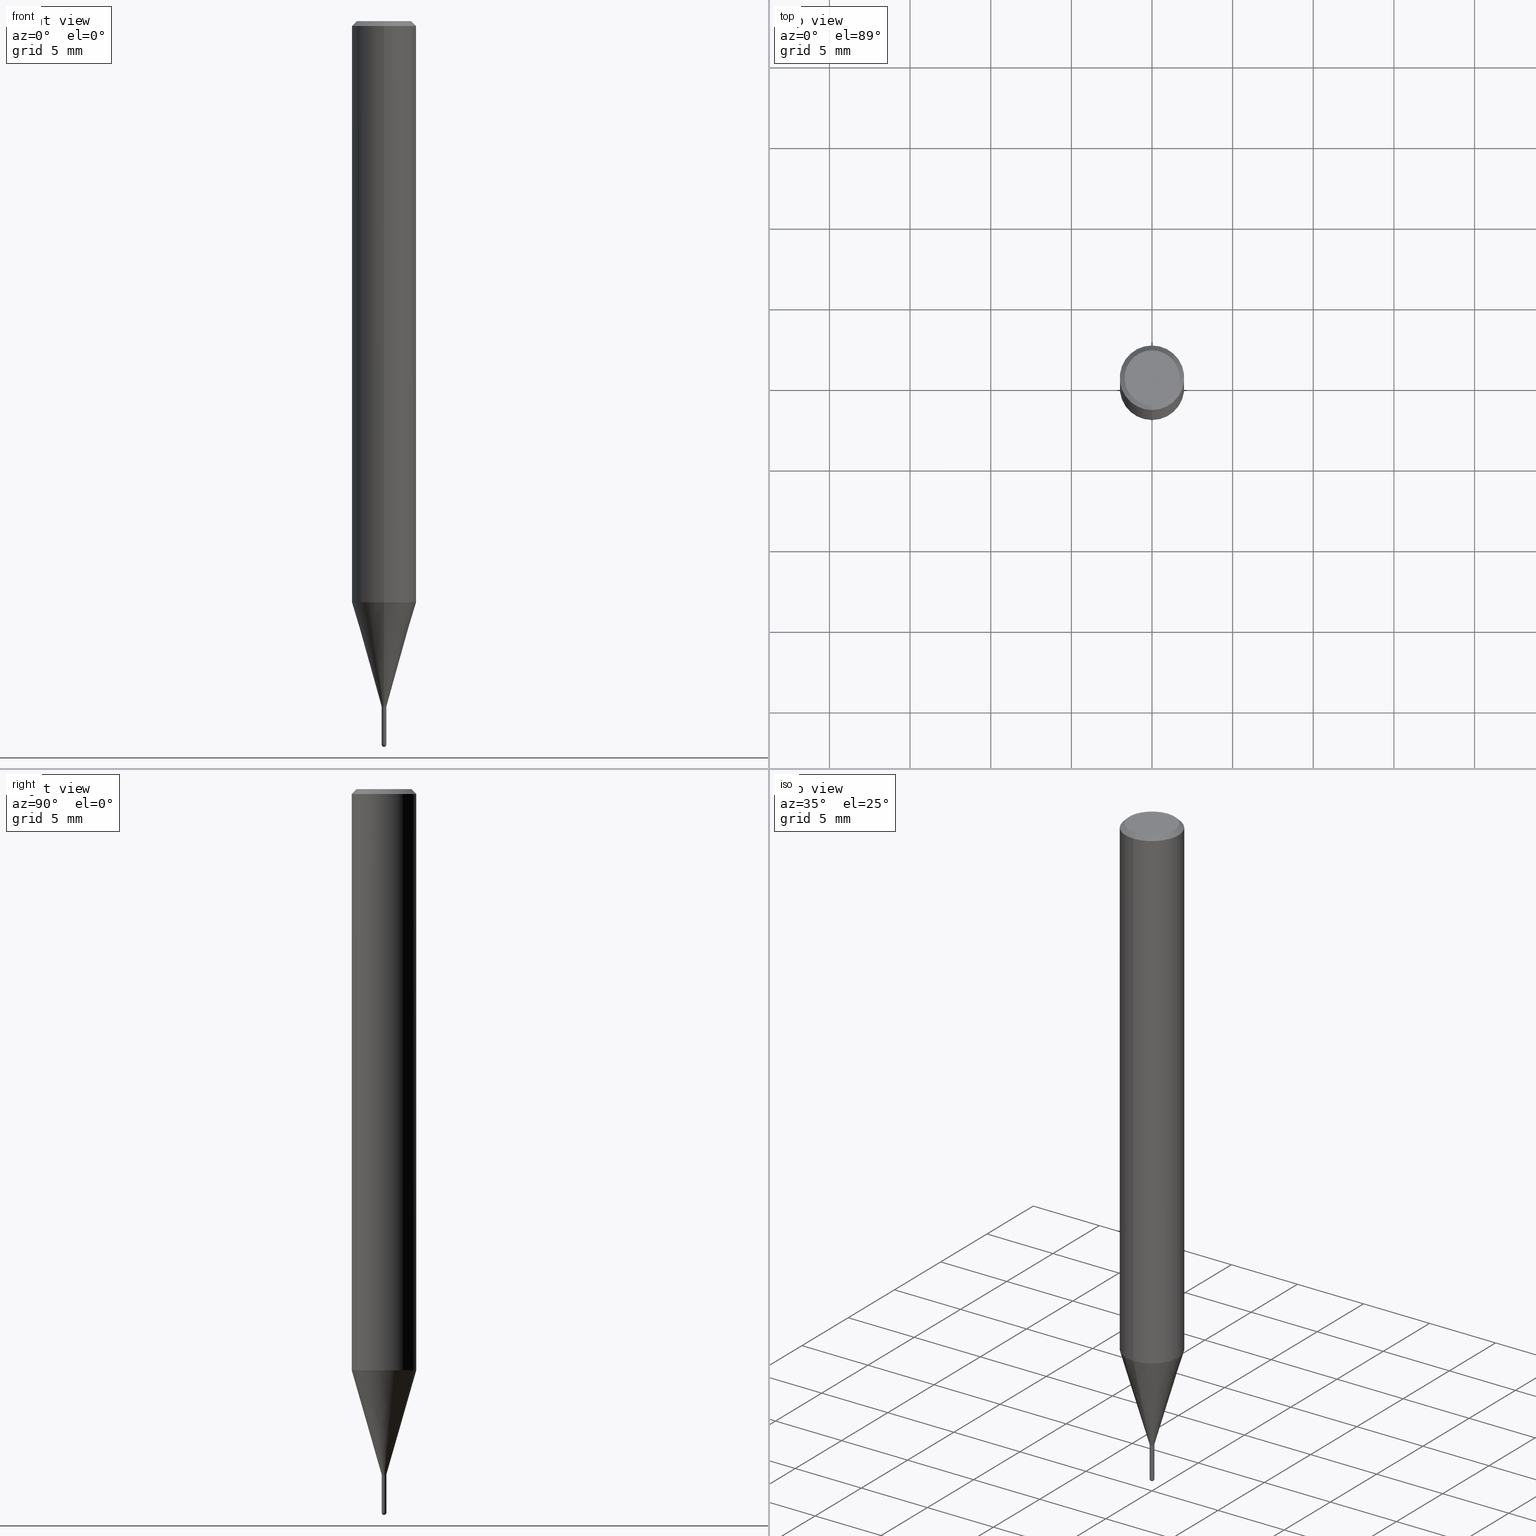
[diagram: canonical four-view strip — front | top / right | iso, engineering-drawing reading convention]
A machine part, canonical four-view strip (front | top / right | iso — engineering-drawing reading convention). The complete STEP part file that produces these views, byte-faithful:
ISO-10303-21;
HEADER;
FILE_DESCRIPTION(('no description'),'unknown implementation level');
FILE_NAME('HSLB2003-025-Huellk.stp','  ',('CIMSOURCE GmbH'),('CADClick - KiM GmbH - www.kimweb.de'),'unknown preprocess','ACIS','unknown authorization');
FILE_SCHEMA(('automotive_design'));
ENDSEC;
DATA;
#1=MECHANICAL_DESIGN_GEOMETRIC_PRESENTATION_REPRESENTATION(' ',(#14,#15,#16,#17,#18,#19,#20,#21,#22,#23,#24,#25,#26,#27,#28,#29,#30,#31,#32,#33,#34,#35,#36,#37,#38,#39,#40,#41,#42,#43,#44,#45,#46,#47,#48,#49,#50,#51,#52,#53,#54,#55,#56,#57,#58,#59,#60,#61,#62,#63,#64,#65,#66,#67,#68,#69,#70,#71,#72,#73,#74),#10);
#2=PRODUCT_DEFINITION_CONTEXT('',#75,'design');
#3=APPLICATION_PROTOCOL_DEFINITION('INTERNATIONAL STANDARD','automotive_design',1994,#75);
#4=PRODUCT_CATEGORY_RELATIONSHIP('NONE','NONE',#76,#77);
#5=SHAPE_DEFINITION_REPRESENTATION(#78,#79);
#6=PRODUCT_DEFINITION_CONTEXT('',#80,'design');
#7=APPLICATION_PROTOCOL_DEFINITION('INTERNATIONAL STANDARD','automotive_design',1994,#80);
#8=PRODUCT_CATEGORY_RELATIONSHIP('NONE','NONE',#81,#82);
#9=SHAPE_DEFINITION_REPRESENTATION(#83,#84);
#10= (GEOMETRIC_REPRESENTATION_CONTEXT(3)GLOBAL_UNCERTAINTY_ASSIGNED_CONTEXT((#87))GLOBAL_UNIT_ASSIGNED_CONTEXT((#89,#90,#91))REPRESENTATION_CONTEXT('NONE','WORKSPACE'));
#14=STYLED_ITEM('',(#93),#94);
#15=STYLED_ITEM('',(#95),#96);
#16=STYLED_ITEM('',(#97),#98);
#17=STYLED_ITEM('',(#99),#100);
#18=STYLED_ITEM('',(#101),#102);
#19=STYLED_ITEM('',(#103),#104);
#20=STYLED_ITEM('',(#105),#106);
#21=STYLED_ITEM('',(#107),#108);
#22=STYLED_ITEM('',(#109),#110);
#23=STYLED_ITEM('',(#111),#112);
#24=STYLED_ITEM('',(#113),#114);
#25=STYLED_ITEM('',(#115),#116);
#26=STYLED_ITEM('',(#117),#118);
#27=STYLED_ITEM('',(#119),#120);
#28=STYLED_ITEM('',(#121),#122);
#29=STYLED_ITEM('',(#123),#124);
#30=STYLED_ITEM('',(#125),#126);
#31=STYLED_ITEM('',(#127),#128);
#32=STYLED_ITEM('',(#129),#130);
#33=STYLED_ITEM('',(#131),#132);
#34=STYLED_ITEM('',(#133),#134);
#35=STYLED_ITEM('',(#135),#136);
#36=STYLED_ITEM('',(#137),#138);
#37=STYLED_ITEM('',(#139),#140);
#38=STYLED_ITEM('',(#141),#142);
#39=STYLED_ITEM('',(#143),#144);
#40=STYLED_ITEM('',(#145),#146);
#41=STYLED_ITEM('',(#147),#148);
#42=STYLED_ITEM('',(#149),#150);
#43=STYLED_ITEM('',(#151),#152);
#44=STYLED_ITEM('',(#153),#154);
#45=STYLED_ITEM('',(#155),#156);
#46=STYLED_ITEM('',(#157),#158);
#47=STYLED_ITEM('',(#159),#160);
#48=STYLED_ITEM('',(#161),#162);
#49=STYLED_ITEM('',(#163),#164);
#50=STYLED_ITEM('',(#165),#166);
#51=STYLED_ITEM('',(#167),#168);
#52=STYLED_ITEM('',(#169),#170);
#53=STYLED_ITEM('',(#171),#172);
#54=STYLED_ITEM('',(#173),#174);
#55=STYLED_ITEM('',(#175),#176);
#56=STYLED_ITEM('',(#177),#178);
#57=STYLED_ITEM('',(#179),#180);
#58=STYLED_ITEM('',(#181),#182);
#59=STYLED_ITEM('',(#183),#184);
#60=STYLED_ITEM('',(#185),#186);
#61=STYLED_ITEM('',(#187),#188);
#62=STYLED_ITEM('',(#189),#190);
#63=STYLED_ITEM('',(#191),#192);
#64=STYLED_ITEM('',(#193),#194);
#65=STYLED_ITEM('',(#195),#196);
#66=STYLED_ITEM('',(#197),#198);
#67=STYLED_ITEM('',(#199),#200);
#68=STYLED_ITEM('',(#201),#202);
#69=STYLED_ITEM('',(#203),#204);
#70=STYLED_ITEM('',(#205),#206);
#71=STYLED_ITEM('',(#207),#208);
#72=STYLED_ITEM('',(#209),#210);
#73=STYLED_ITEM('',(#211),#212);
#74=STYLED_ITEM('',(#213),#214);
#75=APPLICATION_CONTEXT(' ');
#76=PRODUCT_CATEGORY('part','NONE');
#77=PRODUCT_RELATED_PRODUCT_CATEGORY('detail',' ',(#215));
#78=PRODUCT_DEFINITION_SHAPE('NONE','NONE',#216);
#79=ADVANCED_BREP_SHAPE_REPRESENTATION('1',(#198,#217),#10);
#80=APPLICATION_CONTEXT(' ');
#81=PRODUCT_CATEGORY('part','NONE');
#82=PRODUCT_RELATED_PRODUCT_CATEGORY('detail',' ',(#218));
#83=PRODUCT_DEFINITION_SHAPE('NONE','NONE',#219);
#84=ADVANCED_BREP_SHAPE_REPRESENTATION('2',(#164,#220),#10);
#87=UNCERTAINTY_MEASURE_WITH_UNIT(LENGTH_MEASURE(1.0E-006),#89,'','');
#89= (CONVERSION_BASED_UNIT('MILLIMETRE',#223)LENGTH_UNIT()NAMED_UNIT(#226));
#90= (NAMED_UNIT(#228)PLANE_ANGLE_UNIT()SI_UNIT($,.RADIAN.));
#91= (NAMED_UNIT(#228)SOLID_ANGLE_UNIT()SI_UNIT($,.STERADIAN.));
#93=PRESENTATION_STYLE_ASSIGNMENT((#234));
#94=EDGE_CURVE('',#128,#178,#235,.T.);
#95=PRESENTATION_STYLE_ASSIGNMENT((#236));
#96=EDGE_CURVE('',#202,#214,#237,.T.);
#97=PRESENTATION_STYLE_ASSIGNMENT((#238));
#98=EDGE_CURVE('',#130,#176,#239,.T.);
#99=PRESENTATION_STYLE_ASSIGNMENT((#240));
#100=EDGE_CURVE('',#128,#112,#241,.T.);
#101=PRESENTATION_STYLE_ASSIGNMENT((#242));
#102=EDGE_CURVE('',#154,#136,#243,.T.);
#103=PRESENTATION_STYLE_ASSIGNMENT((#244));
#104=VERTEX_POINT('',#245);
#105=PRESENTATION_STYLE_ASSIGNMENT((#246));
#106=VERTEX_POINT('',#247);
#107=PRESENTATION_STYLE_ASSIGNMENT((#248));
#108=EDGE_CURVE('',#106,#142,#249,.T.);
#109=PRESENTATION_STYLE_ASSIGNMENT((#250));
#110=ADVANCED_FACE('',(#251),#252,.T.);
#111=PRESENTATION_STYLE_ASSIGNMENT((#253));
#112=VERTEX_POINT('',#254);
#113=PRESENTATION_STYLE_ASSIGNMENT((#255));
#114=EDGE_CURVE('',#158,#130,#256,.T.);
#115=PRESENTATION_STYLE_ASSIGNMENT((#257));
#116=ADVANCED_FACE('',(#258),#259,.T.);
#117=PRESENTATION_STYLE_ASSIGNMENT((#260));
#118=EDGE_CURVE('',#104,#158,#261,.T.);
#119=PRESENTATION_STYLE_ASSIGNMENT((#262));
#120=EDGE_CURVE('',#112,#192,#263,.T.);
#121=PRESENTATION_STYLE_ASSIGNMENT((#264));
#122=ADVANCED_FACE('',(#265),#266,.T.);
#123=PRESENTATION_STYLE_ASSIGNMENT((#267));
#124=ADVANCED_FACE('',(#268),#269,.T.);
#125=PRESENTATION_STYLE_ASSIGNMENT((#270));
#126=EDGE_CURVE('',#192,#188,#271,.T.);
#127=PRESENTATION_STYLE_ASSIGNMENT((#272));
#128=VERTEX_POINT('',#273);
#129=PRESENTATION_STYLE_ASSIGNMENT((#274));
#130=VERTEX_POINT('',#275);
#131=PRESENTATION_STYLE_ASSIGNMENT((#276));
#132=ADVANCED_FACE('',(#277),#278,.T.);
#133=PRESENTATION_STYLE_ASSIGNMENT((#279));
#134=ADVANCED_FACE('',(#280),#281,.T.);
#135=PRESENTATION_STYLE_ASSIGNMENT((#282));
#136=VERTEX_POINT('',#283);
#137=PRESENTATION_STYLE_ASSIGNMENT((#284));
#138=ADVANCED_FACE('',(#285),#286,.T.);
#139=PRESENTATION_STYLE_ASSIGNMENT((#287));
#140=EDGE_CURVE('',#104,#136,#288,.T.);
#141=PRESENTATION_STYLE_ASSIGNMENT((#289));
#142=VERTEX_POINT('',#290);
#143=PRESENTATION_STYLE_ASSIGNMENT((#291));
#144=EDGE_CURVE('',#142,#106,#292,.T.);
#145=PRESENTATION_STYLE_ASSIGNMENT((#293));
#146=EDGE_CURVE('',#112,#128,#294,.T.);
#147=PRESENTATION_STYLE_ASSIGNMENT((#295));
#148=ADVANCED_FACE('',(#296),#297,.T.);
#149=PRESENTATION_STYLE_ASSIGNMENT((#298));
#150=EDGE_CURVE('',#212,#112,#299,.T.);
#151=PRESENTATION_STYLE_ASSIGNMENT((#300));
#152=EDGE_CURVE('',#158,#154,#301,.T.);
#153=PRESENTATION_STYLE_ASSIGNMENT((#302));
#154=VERTEX_POINT('',#303);
#155=PRESENTATION_STYLE_ASSIGNMENT((#304));
#156=EDGE_CURVE('',#188,#192,#305,.T.);
#157=PRESENTATION_STYLE_ASSIGNMENT((#306));
#158=VERTEX_POINT('',#307);
#159=PRESENTATION_STYLE_ASSIGNMENT((#308));
#160=EDGE_CURVE('',#142,#202,#309,.T.);
#161=PRESENTATION_STYLE_ASSIGNMENT((#310));
#162=EDGE_CURVE('',#136,#104,#311,.T.);
#163=PRESENTATION_STYLE_ASSIGNMENT((#312));
#164=MANIFOLD_SOLID_BREP('2',#313);
#165=PRESENTATION_STYLE_ASSIGNMENT((#314));
#166=ADVANCED_FACE('',(#315),#316,.T.);
#167=PRESENTATION_STYLE_ASSIGNMENT((#317));
#168=ADVANCED_FACE('',(#318),#319,.T.);
#169=PRESENTATION_STYLE_ASSIGNMENT((#320));
#170=EDGE_CURVE('',#214,#106,#321,.T.);
#171=PRESENTATION_STYLE_ASSIGNMENT((#322));
#172=EDGE_CURVE('',#178,#212,#323,.T.);
#173=PRESENTATION_STYLE_ASSIGNMENT((#324));
#174=EDGE_CURVE('',#154,#158,#325,.T.);
#175=PRESENTATION_STYLE_ASSIGNMENT((#326));
#176=VERTEX_POINT('',#327);
#177=PRESENTATION_STYLE_ASSIGNMENT((#328));
#178=VERTEX_POINT('',#329);
#179=PRESENTATION_STYLE_ASSIGNMENT((#330));
#180=EDGE_CURVE('',#214,#202,#331,.T.);
#181=PRESENTATION_STYLE_ASSIGNMENT((#332));
#182=ADVANCED_FACE('',(#333,#334),#335,.T.);
#183=PRESENTATION_STYLE_ASSIGNMENT((#336));
#184=ADVANCED_FACE('',(#337),#338,.T.);
#185=PRESENTATION_STYLE_ASSIGNMENT((#339));
#186=EDGE_CURVE('',#176,#130,#340,.T.);
#187=PRESENTATION_STYLE_ASSIGNMENT((#341));
#188=VERTEX_POINT('',#342);
#189=PRESENTATION_STYLE_ASSIGNMENT((#343));
#190=ADVANCED_FACE('',(#344),#345,.T.);
#191=PRESENTATION_STYLE_ASSIGNMENT((#346));
#192=VERTEX_POINT('',#347);
#193=PRESENTATION_STYLE_ASSIGNMENT((#348));
#194=EDGE_CURVE('',#176,#154,#349,.T.);
#195=PRESENTATION_STYLE_ASSIGNMENT((#350));
#196=EDGE_CURVE('',#212,#178,#351,.T.);
#197=PRESENTATION_STYLE_ASSIGNMENT((#352));
#198=MANIFOLD_SOLID_BREP('1',#353);
#199=PRESENTATION_STYLE_ASSIGNMENT((#354));
#200=ADVANCED_FACE('',(#355),#356,.T.);
#201=PRESENTATION_STYLE_ASSIGNMENT((#357));
#202=VERTEX_POINT('',#358);
#203=PRESENTATION_STYLE_ASSIGNMENT((#359));
#204=EDGE_CURVE('',#214,#202,#360,.T.);
#205=PRESENTATION_STYLE_ASSIGNMENT((#361));
#206=ADVANCED_FACE('',(#362),#363,.T.);
#207=PRESENTATION_STYLE_ASSIGNMENT((#364));
#208=ADVANCED_FACE('',(#365),#366,.T.);
#209=PRESENTATION_STYLE_ASSIGNMENT((#367));
#210=EDGE_CURVE('',#188,#128,#368,.T.);
#211=PRESENTATION_STYLE_ASSIGNMENT((#369));
#212=VERTEX_POINT('',#370);
#213=PRESENTATION_STYLE_ASSIGNMENT((#371));
#214=VERTEX_POINT('',#372);
#215=PRODUCT('1','1','PART-1-DESC',(#373));
#216=PRODUCT_DEFINITION('NONE','NONE',#374,#2);
#217=AXIS2_PLACEMENT_3D('',#375,#376,#377);
#218=PRODUCT('2','2','PART-2-DESC',(#378));
#219=PRODUCT_DEFINITION('NONE','NONE',#379,#6);
#220=AXIS2_PLACEMENT_3D('',#380,#381,#382);
#223=LENGTH_MEASURE_WITH_UNIT(LENGTH_MEASURE(1.0),#383);
#226=DIMENSIONAL_EXPONENTS(1.0,0.0,0.0,0.0,0.0,0.0,0.0);
#228=DIMENSIONAL_EXPONENTS(0.0,0.0,0.0,0.0,0.0,0.0,0.0);
#234=CURVE_STYLE('',#384,POSITIVE_LENGTH_MEASURE(1.0E-006),#385);
#235=LINE('',#386,#387);
#236=CURVE_STYLE('',#388,POSITIVE_LENGTH_MEASURE(1.0E-006),#389);
#237=CIRCLE('',#390,0.15);
#238=CURVE_STYLE('',#391,POSITIVE_LENGTH_MEASURE(1.0E-006),#392);
#239=CIRCLE('',#393,0.14495);
#240=CURVE_STYLE('',#394,POSITIVE_LENGTH_MEASURE(1.0E-006),#395);
#241=CIRCLE('',#396,2.0);
#242=CURVE_STYLE('',#397,POSITIVE_LENGTH_MEASURE(1.0E-006),#398);
#243=LINE('',#399,#400);
#244=POINT_STYLE(' ',#401,POSITIVE_LENGTH_MEASURE(1.0E-006),#402);
#245=CARTESIAN_POINT('',(0.0,1.99995,-36.031));
#246=POINT_STYLE(' ',#403,POSITIVE_LENGTH_MEASURE(1.0E-006),#404);
#247=CARTESIAN_POINT('',(1.83568492437974E-017,-0.1499,-44.76));
#248=CURVE_STYLE('',#405,POSITIVE_LENGTH_MEASURE(1.0E-006),#406);
#249=CIRCLE('',#407,0.1499);
#250=SURFACE_STYLE_USAGE(.BOTH.,#408);
#251=FACE_OUTER_BOUND('',#409,.T.);
#252=CONICAL_SURFACE('',#410,1.85,0.785398163397453);
#253=POINT_STYLE(' ',#411,POSITIVE_LENGTH_MEASURE(1.0E-006),#412);
#254=CARTESIAN_POINT('',(2.44921270764475E-016,-2.0,-0.299999999999997));
#255=CURVE_STYLE('',#413,POSITIVE_LENGTH_MEASURE(1.0E-006),#414);
#256=LINE('',#415,#416);
#257=SURFACE_STYLE_USAGE(.BOTH.,#417);
#258=FACE_OUTER_BOUND('',#418,.T.);
#259=PLANE('',#419);
#260=CURVE_STYLE('',#420,POSITIVE_LENGTH_MEASURE(1.0E-006),#421);
#261=LINE('',#422,#423);
#262=CURVE_STYLE('',#424,POSITIVE_LENGTH_MEASURE(1.0E-006),#425);
#263=LINE('',#426,#427);
#264=SURFACE_STYLE_USAGE(.BOTH.,#428);
#265=FACE_OUTER_BOUND('',#429,.T.);
#266=CONICAL_SURFACE('',#430,1.07245,0.279258979430112);
#267=SURFACE_STYLE_USAGE(.BOTH.,#431);
#268=FACE_OUTER_BOUND('',#432,.T.);
#269=CONICAL_SURFACE('',#433,0.14995,0.00111111065386396);
#270=CURVE_STYLE('',#434,POSITIVE_LENGTH_MEASURE(1.0E-006),#435);
#271=CIRCLE('',#436,1.7);
#272=POINT_STYLE(' ',#437,POSITIVE_LENGTH_MEASURE(1.0E-006),#438);
#273=CARTESIAN_POINT('',(0.0,2.0,-0.299999999999997));
#274=POINT_STYLE(' ',#439,POSITIVE_LENGTH_MEASURE(1.0E-006),#440);
#275=CARTESIAN_POINT('',(0.0,0.14495,-44.76));
#276=SURFACE_STYLE_USAGE(.BOTH.,#441);
#277=FACE_OUTER_BOUND('',#442,.T.);
#278=CYLINDRICAL_SURFACE('',#443,0.14495);
#279=SURFACE_STYLE_USAGE(.BOTH.,#444);
#280=FACE_OUTER_BOUND('',#445,.T.);
#281=CYLINDRICAL_SURFACE('',#446,2.0);
#282=POINT_STYLE(' ',#447,POSITIVE_LENGTH_MEASURE(1.0E-006),#448);
#283=CARTESIAN_POINT('',(2.44915147732706E-016,-1.99995,-36.031));
#284=SURFACE_STYLE_USAGE(.BOTH.,#449);
#285=FACE_OUTER_BOUND('',#450,.T.);
#286=PLANE('',#451);
#287=CURVE_STYLE('',#452,POSITIVE_LENGTH_MEASURE(1.0E-006),#453);
#288=CIRCLE('',#454,1.99995);
#289=POINT_STYLE(' ',#455,POSITIVE_LENGTH_MEASURE(1.0E-006),#456);
#290=CARTESIAN_POINT('',(0.0,0.1499,-44.76));
#291=CURVE_STYLE('',#457,POSITIVE_LENGTH_MEASURE(1.0E-006),#458);
#292=CIRCLE('',#459,0.1499);
#293=CURVE_STYLE('',#460,POSITIVE_LENGTH_MEASURE(1.0E-006),#461);
#294=CIRCLE('',#462,2.0);
#295=SURFACE_STYLE_USAGE(.BOTH.,#463);
#296=FACE_OUTER_BOUND('',#464,.T.);
#297=CONICAL_SURFACE('',#465,1.07245,0.279258979430112);
#298=CURVE_STYLE('',#466,POSITIVE_LENGTH_MEASURE(1.0E-006),#467);
#299=LINE('',#468,#469);
#300=CURVE_STYLE('',#470,POSITIVE_LENGTH_MEASURE(1.0E-006),#471);
#301=CIRCLE('',#472,0.14495);
#302=POINT_STYLE(' ',#473,POSITIVE_LENGTH_MEASURE(1.0E-006),#474);
#303=CARTESIAN_POINT('',(1.77506690986554E-017,-0.14495,-42.5));
#304=CURVE_STYLE('',#475,POSITIVE_LENGTH_MEASURE(1.0E-006),#476);
#305=CIRCLE('',#477,1.7);
#306=POINT_STYLE(' ',#478,POSITIVE_LENGTH_MEASURE(1.0E-006),#479);
#307=CARTESIAN_POINT('',(0.0,0.14495,-42.5));
#308=CURVE_STYLE('',#480,POSITIVE_LENGTH_MEASURE(1.0E-006),#481);
#309=LINE('',#482,#483);
#310=CURVE_STYLE('',#484,POSITIVE_LENGTH_MEASURE(1.0E-006),#485);
#311=CIRCLE('',#486,1.99995);
#312=SURFACE_STYLE_USAGE(.BOTH.,#487);
#313=CLOSED_SHELL('',(#200,#208,#138,#124,#190));
#314=SURFACE_STYLE_USAGE(.BOTH.,#488);
#315=FACE_OUTER_BOUND('',#489,.T.);
#316=PLANE('',#490);
#317=SURFACE_STYLE_USAGE(.BOTH.,#491);
#318=FACE_OUTER_BOUND('',#492,.T.);
#319=CYLINDRICAL_SURFACE('',#493,0.14495);
#320=CURVE_STYLE('',#494,POSITIVE_LENGTH_MEASURE(1.0E-006),#495);
#321=LINE('',#496,#497);
#322=CURVE_STYLE('',#498,POSITIVE_LENGTH_MEASURE(1.0E-006),#499);
#323=CIRCLE('',#500,2.0);
#324=CURVE_STYLE('',#501,POSITIVE_LENGTH_MEASURE(1.0E-006),#502);
#325=CIRCLE('',#503,0.14495);
#326=POINT_STYLE(' ',#504,POSITIVE_LENGTH_MEASURE(1.0E-006),#505);
#327=CARTESIAN_POINT('',(1.77506690986554E-017,-0.14495,-44.76));
#328=POINT_STYLE(' ',#506,POSITIVE_LENGTH_MEASURE(1.0E-006),#507);
#329=CARTESIAN_POINT('',(0.0,2.0,-36.031));
#330=CURVE_STYLE('',#508,POSITIVE_LENGTH_MEASURE(1.0E-006),#509);
#331=CIRCLE('',#510,0.15);
#332=SURFACE_STYLE_USAGE(.BOTH.,#511);
#333=FACE_OUTER_BOUND('',#512,.T.);
#334=FACE_BOUND('',#513,.T.);
#335=PLANE('',#514);
#336=SURFACE_STYLE_USAGE(.BOTH.,#515);
#337=FACE_OUTER_BOUND('',#516,.T.);
#338=CONICAL_SURFACE('',#517,1.85,0.785398163397453);
#339=CURVE_STYLE('',#518,POSITIVE_LENGTH_MEASURE(1.0E-006),#519);
#340=CIRCLE('',#520,0.14495);
#341=POINT_STYLE(' ',#521,POSITIVE_LENGTH_MEASURE(1.0E-006),#522);
#342=CARTESIAN_POINT('',(0.0,1.7,0.0));
#343=SURFACE_STYLE_USAGE(.BOTH.,#523);
#344=FACE_OUTER_BOUND('',#524,.T.);
#345=SPHERICAL_SURFACE('',#525,0.15);
#346=POINT_STYLE(' ',#526,POSITIVE_LENGTH_MEASURE(1.0E-006),#527);
#347=CARTESIAN_POINT('',(2.08183080149804E-016,-1.7,0.0));
#348=CURVE_STYLE('',#528,POSITIVE_LENGTH_MEASURE(1.0E-006),#529);
#349=LINE('',#530,#531);
#350=CURVE_STYLE('',#532,POSITIVE_LENGTH_MEASURE(1.0E-006),#533);
#351=CIRCLE('',#534,2.0);
#352=SURFACE_STYLE_USAGE(.BOTH.,#535);
#353=CLOSED_SHELL('',(#132,#122,#206,#184,#182,#166,#110,#134,#148,#168,#116));
#354=SURFACE_STYLE_USAGE(.BOTH.,#536);
#355=FACE_OUTER_BOUND('',#537,.T.);
#356=SPHERICAL_SURFACE('',#538,0.15);
#357=POINT_STYLE(' ',#539,POSITIVE_LENGTH_MEASURE(1.0E-006),#540);
#358=CARTESIAN_POINT('',(0.0,0.15,-44.85));
#359=CURVE_STYLE('',#541,POSITIVE_LENGTH_MEASURE(1.0E-006),#542);
#360=CIRCLE('',#543,0.15);
#361=SURFACE_STYLE_USAGE(.BOTH.,#544);
#362=FACE_OUTER_BOUND('',#545,.T.);
#363=CYLINDRICAL_SURFACE('',#546,2.0);
#364=SURFACE_STYLE_USAGE(.BOTH.,#547);
#365=FACE_OUTER_BOUND('',#548,.T.);
#366=CONICAL_SURFACE('',#549,0.14995,0.00111111065386396);
#367=CURVE_STYLE('',#550,POSITIVE_LENGTH_MEASURE(1.0E-006),#551);
#368=LINE('',#552,#553);
#369=POINT_STYLE(' ',#554,POSITIVE_LENGTH_MEASURE(1.0E-006),#555);
#370=CARTESIAN_POINT('',(2.44921270764475E-016,-2.0,-36.031));
#371=POINT_STYLE(' ',#556,POSITIVE_LENGTH_MEASURE(1.0E-006),#557);
#372=CARTESIAN_POINT('',(1.83690953073356E-017,-0.15,-44.85));
#373=PRODUCT_CONTEXT('',#75,'mechanical');
#374=PRODUCT_DEFINITION_FORMATION_WITH_SPECIFIED_SOURCE(' ','NONE',#215,.NOT_KNOWN.);
#375=CARTESIAN_POINT('',(0.0,0.0,0.0));
#376=DIRECTION('',(0.0,0.0,1.0));
#377=DIRECTION('',(1.0,0.0,0.0));
#378=PRODUCT_CONTEXT('',#80,'mechanical');
#379=PRODUCT_DEFINITION_FORMATION_WITH_SPECIFIED_SOURCE(' ','NONE',#218,.NOT_KNOWN.);
#380=CARTESIAN_POINT('',(0.0,0.0,0.0));
#381=DIRECTION('',(0.0,0.0,1.0));
#382=DIRECTION('',(1.0,0.0,0.0));
#383= (NAMED_UNIT(#226)LENGTH_UNIT()SI_UNIT(.MILLI.,.METRE.));
#384=DRAUGHTING_PRE_DEFINED_CURVE_FONT('continuous');
#385=COLOUR_RGB('',0.498039215803146,0.498039215803146,0.498039215803146);
#386=CARTESIAN_POINT('',(-2.44921270764475E-016,2.0,-18.1655));
#387=VECTOR('',#559,1.0);
#388=DRAUGHTING_PRE_DEFINED_CURVE_FONT('continuous');
#389=COLOUR_RGB('',0.800000011920929,0.800000011920929,0.800000011920929);
#390=AXIS2_PLACEMENT_3D('',#560,#561,#562);
#391=DRAUGHTING_PRE_DEFINED_CURVE_FONT('continuous');
#392=COLOUR_RGB('',0.498039215803146,0.498039215803146,0.498039215803146);
#393=AXIS2_PLACEMENT_3D('',#563,#564,#565);
#394=DRAUGHTING_PRE_DEFINED_CURVE_FONT('continuous');
#395=COLOUR_RGB('',0.498039215803146,0.498039215803146,0.498039215803146);
#396=AXIS2_PLACEMENT_3D('',#566,#567,#568);
#397=DRAUGHTING_PRE_DEFINED_CURVE_FONT('continuous');
#398=COLOUR_RGB('',0.498039215803146,0.498039215803146,0.498039215803146);
#399=CARTESIAN_POINT('',(1.31332908415681E-016,-1.07245,-39.2655));
#400=VECTOR('',#569,1.0);
#401=PRE_DEFINED_MARKER('');
#402=COLOUR_RGB('',0.498039215803146,0.498039215803146,0.498039215803146);
#403=PRE_DEFINED_MARKER('');
#404=COLOUR_RGB('',0.800000011920929,0.800000011920929,0.800000011920929);
#405=DRAUGHTING_PRE_DEFINED_CURVE_FONT('continuous');
#406=COLOUR_RGB('',0.800000011920929,0.800000011920929,0.800000011920929);
#407=AXIS2_PLACEMENT_3D('',#570,#571,#572);
#408=SURFACE_SIDE_STYLE('',(#573));
#409=EDGE_LOOP('',(#574,#575,#576,#577));
#410=AXIS2_PLACEMENT_3D('',#578,#579,#580);
#411=PRE_DEFINED_MARKER('');
#412=COLOUR_RGB('',0.498039215803146,0.498039215803146,0.498039215803146);
#413=DRAUGHTING_PRE_DEFINED_CURVE_FONT('continuous');
#414=COLOUR_RGB('',0.498039215803146,0.498039215803146,0.498039215803146);
#415=CARTESIAN_POINT('',(-1.77506690986554E-017,0.14495,-43.63));
#416=VECTOR('',#581,1.0);
#417=SURFACE_SIDE_STYLE('',(#582));
#418=EDGE_LOOP('',(#583,#584));
#419=AXIS2_PLACEMENT_3D('',#585,#586,#587);
#420=DRAUGHTING_PRE_DEFINED_CURVE_FONT('continuous');
#421=COLOUR_RGB('',0.498039215803146,0.498039215803146,0.498039215803146);
#422=CARTESIAN_POINT('',(-1.31332908415681E-016,1.07245,-39.2655));
#423=VECTOR('',#588,1.0);
#424=DRAUGHTING_PRE_DEFINED_CURVE_FONT('continuous');
#425=COLOUR_RGB('',0.498039215803146,0.498039215803146,0.498039215803146);
#426=CARTESIAN_POINT('',(2.2655217545714E-016,-1.85,-0.149999999999999));
#427=VECTOR('',#589,1.0);
#428=SURFACE_SIDE_STYLE('',(#590));
#429=EDGE_LOOP('',(#591,#592,#593,#594));
#430=AXIS2_PLACEMENT_3D('',#595,#596,#597);
#431=SURFACE_SIDE_STYLE('',(#598));
#432=EDGE_LOOP('',(#599,#600,#601,#602));
#433=AXIS2_PLACEMENT_3D('',#603,#604,#605);
#434=DRAUGHTING_PRE_DEFINED_CURVE_FONT('continuous');
#435=COLOUR_RGB('',0.498039215803146,0.498039215803146,0.498039215803146);
#436=AXIS2_PLACEMENT_3D('',#606,#607,#608);
#437=PRE_DEFINED_MARKER('');
#438=COLOUR_RGB('',0.498039215803146,0.498039215803146,0.498039215803146);
#439=PRE_DEFINED_MARKER('');
#440=COLOUR_RGB('',0.498039215803146,0.498039215803146,0.498039215803146);
#441=SURFACE_SIDE_STYLE('',(#609));
#442=EDGE_LOOP('',(#610,#611,#612,#613));
#443=AXIS2_PLACEMENT_3D('',#614,#615,#616);
#444=SURFACE_SIDE_STYLE('',(#617));
#445=EDGE_LOOP('',(#618,#619,#620,#621));
#446=AXIS2_PLACEMENT_3D('',#622,#623,#624);
#447=PRE_DEFINED_MARKER('');
#448=COLOUR_RGB('',0.498039215803146,0.498039215803146,0.498039215803146);
#449=SURFACE_SIDE_STYLE('',(#625));
#450=EDGE_LOOP('',(#626,#627));
#451=AXIS2_PLACEMENT_3D('',#628,#629,#630);
#452=DRAUGHTING_PRE_DEFINED_CURVE_FONT('continuous');
#453=COLOUR_RGB('',0.498039215803146,0.498039215803146,0.498039215803146);
#454=AXIS2_PLACEMENT_3D('',#631,#632,#633);
#455=PRE_DEFINED_MARKER('');
#456=COLOUR_RGB('',0.800000011920929,0.800000011920929,0.800000011920929);
#457=DRAUGHTING_PRE_DEFINED_CURVE_FONT('continuous');
#458=COLOUR_RGB('',0.800000011920929,0.800000011920929,0.800000011920929);
#459=AXIS2_PLACEMENT_3D('',#634,#635,#636);
#460=DRAUGHTING_PRE_DEFINED_CURVE_FONT('continuous');
#461=COLOUR_RGB('',0.498039215803146,0.498039215803146,0.498039215803146);
#462=AXIS2_PLACEMENT_3D('',#637,#638,#639);
#463=SURFACE_SIDE_STYLE('',(#640));
#464=EDGE_LOOP('',(#641,#642,#643,#644));
#465=AXIS2_PLACEMENT_3D('',#645,#646,#647);
#466=DRAUGHTING_PRE_DEFINED_CURVE_FONT('continuous');
#467=COLOUR_RGB('',0.498039215803146,0.498039215803146,0.498039215803146);
#468=CARTESIAN_POINT('',(2.44921270764475E-016,-2.0,-18.1655));
#469=VECTOR('',#648,1.0);
#470=DRAUGHTING_PRE_DEFINED_CURVE_FONT('continuous');
#471=COLOUR_RGB('',0.498039215803146,0.498039215803146,0.498039215803146);
#472=AXIS2_PLACEMENT_3D('',#649,#650,#651);
#473=PRE_DEFINED_MARKER('');
#474=COLOUR_RGB('',0.498039215803146,0.498039215803146,0.498039215803146);
#475=DRAUGHTING_PRE_DEFINED_CURVE_FONT('continuous');
#476=COLOUR_RGB('',0.498039215803146,0.498039215803146,0.498039215803146);
#477=AXIS2_PLACEMENT_3D('',#652,#653,#654);
#478=PRE_DEFINED_MARKER('');
#479=COLOUR_RGB('',0.498039215803146,0.498039215803146,0.498039215803146);
#480=DRAUGHTING_PRE_DEFINED_CURVE_FONT('continuous');
#481=COLOUR_RGB('',0.800000011920929,0.800000011920929,0.800000011920929);
#482=CARTESIAN_POINT('',(-1.83629722755665E-017,0.14995,-44.805));
#483=VECTOR('',#655,1.0);
#484=DRAUGHTING_PRE_DEFINED_CURVE_FONT('continuous');
#485=COLOUR_RGB('',0.498039215803146,0.498039215803146,0.498039215803146);
#486=AXIS2_PLACEMENT_3D('',#656,#657,#658);
#487=SURFACE_SIDE_STYLE('',(#659));
#488=SURFACE_SIDE_STYLE('',(#660));
#489=EDGE_LOOP('',(#661,#662));
#490=AXIS2_PLACEMENT_3D('',#663,#664,#665);
#491=SURFACE_SIDE_STYLE('',(#666));
#492=EDGE_LOOP('',(#667,#668,#669,#670));
#493=AXIS2_PLACEMENT_3D('',#671,#672,#673);
#494=DRAUGHTING_PRE_DEFINED_CURVE_FONT('continuous');
#495=COLOUR_RGB('',0.800000011920929,0.800000011920929,0.800000011920929);
#496=CARTESIAN_POINT('',(1.83629722755665E-017,-0.14995,-44.805));
#497=VECTOR('',#674,1.0);
#498=DRAUGHTING_PRE_DEFINED_CURVE_FONT('continuous');
#499=COLOUR_RGB('',0.498039215803146,0.498039215803146,0.498039215803146);
#500=AXIS2_PLACEMENT_3D('',#675,#676,#677);
#501=DRAUGHTING_PRE_DEFINED_CURVE_FONT('continuous');
#502=COLOUR_RGB('',0.498039215803146,0.498039215803146,0.498039215803146);
#503=AXIS2_PLACEMENT_3D('',#678,#679,#680);
#504=PRE_DEFINED_MARKER('');
#505=COLOUR_RGB('',0.498039215803146,0.498039215803146,0.498039215803146);
#506=PRE_DEFINED_MARKER('');
#507=COLOUR_RGB('',0.498039215803146,0.498039215803146,0.498039215803146);
#508=DRAUGHTING_PRE_DEFINED_CURVE_FONT('continuous');
#509=COLOUR_RGB('',0.800000011920929,0.800000011920929,0.800000011920929);
#510=AXIS2_PLACEMENT_3D('',#681,#682,#683);
#511=SURFACE_SIDE_STYLE('',(#684));
#512=EDGE_LOOP('',(#685,#686));
#513=EDGE_LOOP('',(#687,#688));
#514=AXIS2_PLACEMENT_3D('',#689,#690,#691);
#515=SURFACE_SIDE_STYLE('',(#692));
#516=EDGE_LOOP('',(#693,#694,#695,#696));
#517=AXIS2_PLACEMENT_3D('',#697,#698,#699);
#518=DRAUGHTING_PRE_DEFINED_CURVE_FONT('continuous');
#519=COLOUR_RGB('',0.498039215803146,0.498039215803146,0.498039215803146);
#520=AXIS2_PLACEMENT_3D('',#700,#701,#702);
#521=PRE_DEFINED_MARKER('');
#522=COLOUR_RGB('',0.498039215803146,0.498039215803146,0.498039215803146);
#523=SURFACE_SIDE_STYLE('',(#703));
#524=EDGE_LOOP('',(#704,#705));
#525=AXIS2_PLACEMENT_3D('',#706,#707,#708);
#526=PRE_DEFINED_MARKER('');
#527=COLOUR_RGB('',0.498039215803146,0.498039215803146,0.498039215803146);
#528=DRAUGHTING_PRE_DEFINED_CURVE_FONT('continuous');
#529=COLOUR_RGB('',0.498039215803146,0.498039215803146,0.498039215803146);
#530=CARTESIAN_POINT('',(1.77506690986554E-017,-0.14495,-43.63));
#531=VECTOR('',#709,1.0);
#532=DRAUGHTING_PRE_DEFINED_CURVE_FONT('continuous');
#533=COLOUR_RGB('',0.498039215803146,0.498039215803146,0.498039215803146);
#534=AXIS2_PLACEMENT_3D('',#710,#711,#712);
#535=SURFACE_SIDE_STYLE('',(#713));
#536=SURFACE_SIDE_STYLE('',(#714));
#537=EDGE_LOOP('',(#715,#716));
#538=AXIS2_PLACEMENT_3D('',#717,#718,#719);
#539=PRE_DEFINED_MARKER('');
#540=COLOUR_RGB('',0.800000011920929,0.800000011920929,0.800000011920929);
#541=DRAUGHTING_PRE_DEFINED_CURVE_FONT('continuous');
#542=COLOUR_RGB('',0.800000011920929,0.800000011920929,0.800000011920929);
#543=AXIS2_PLACEMENT_3D('',#720,#721,#722);
#544=SURFACE_SIDE_STYLE('',(#723));
#545=EDGE_LOOP('',(#724,#725,#726,#727));
#546=AXIS2_PLACEMENT_3D('',#728,#729,#730);
#547=SURFACE_SIDE_STYLE('',(#731));
#548=EDGE_LOOP('',(#732,#733,#734,#735));
#549=AXIS2_PLACEMENT_3D('',#736,#737,#738);
#550=DRAUGHTING_PRE_DEFINED_CURVE_FONT('continuous');
#551=COLOUR_RGB('',0.498039215803146,0.498039215803146,0.498039215803146);
#552=CARTESIAN_POINT('',(-2.2655217545714E-016,1.85,-0.149999999999999));
#553=VECTOR('',#739,1.0);
#554=PRE_DEFINED_MARKER('');
#555=COLOUR_RGB('',0.498039215803146,0.498039215803146,0.498039215803146);
#556=PRE_DEFINED_MARKER('');
#557=COLOUR_RGB('',0.800000011920929,0.800000011920929,0.800000011920929);
#559=DIRECTION('',(0.0,0.0,-1.0));
#560=CARTESIAN_POINT('',(0.0,0.0,-44.85));
#561=DIRECTION('',(0.0,0.0,-1.0));
#562=DIRECTION('',(0.0,1.0,0.0));
#563=CARTESIAN_POINT('',(0.0,0.0,-44.76));
#564=DIRECTION('',(0.0,0.0,-1.0));
#565=DIRECTION('',(0.0,1.0,0.0));
#566=CARTESIAN_POINT('',(0.0,0.0,-0.299999999999997));
#567=DIRECTION('',(0.0,0.0,-1.0));
#568=DIRECTION('',(0.0,1.0,0.0));
#569=DIRECTION('',(3.37554672384358E-017,-0.275643410905672,0.961259959648943));
#570=CARTESIAN_POINT('',(0.0,0.0,-44.76));
#571=DIRECTION('',(0.0,0.0,-1.0));
#572=DIRECTION('',(0.0,1.0,0.0));
#573=SURFACE_STYLE_FILL_AREA(#740);
#574=ORIENTED_EDGE('',*,*,#210,.T.);
#575=ORIENTED_EDGE('',*,*,#146,.F.);
#576=ORIENTED_EDGE('',*,*,#120,.T.);
#577=ORIENTED_EDGE('',*,*,#126,.T.);
#578=CARTESIAN_POINT('',(0.0,0.0,-0.149999999999999));
#579=DIRECTION('',(0.0,-0.0,-1.0));
#580=DIRECTION('',(0.0,1.0,0.0));
#581=DIRECTION('',(0.0,0.0,-1.0));
#582=SURFACE_STYLE_FILL_AREA(#741);
#583=ORIENTED_EDGE('',*,*,#98,.T.);
#584=ORIENTED_EDGE('',*,*,#186,.T.);
#585=CARTESIAN_POINT('',(0.0,0.072475,-44.76));
#586=DIRECTION('',(0.0,0.0,-1.0));
#587=DIRECTION('',(0.0,1.0,0.0));
#588=DIRECTION('',(3.37554672384358E-017,-0.275643410905672,-0.961259959648943));
#589=DIRECTION('',(-8.6592745707194E-017,0.707106781186551,0.707106781186544));
#590=SURFACE_STYLE_FILL_AREA(#742);
#591=ORIENTED_EDGE('',*,*,#118,.F.);
#592=ORIENTED_EDGE('',*,*,#140,.T.);
#593=ORIENTED_EDGE('',*,*,#102,.F.);
#594=ORIENTED_EDGE('',*,*,#152,.F.);
#595=CARTESIAN_POINT('',(0.0,0.0,-39.2655));
#596=DIRECTION('',(-0.0,-0.0,1.0));
#597=DIRECTION('',(0.0,1.0,0.0));
#598=SURFACE_STYLE_FILL_AREA(#743);
#599=ORIENTED_EDGE('',*,*,#160,.T.);
#600=ORIENTED_EDGE('',*,*,#180,.F.);
#601=ORIENTED_EDGE('',*,*,#170,.T.);
#602=ORIENTED_EDGE('',*,*,#108,.T.);
#603=CARTESIAN_POINT('',(0.0,0.0,-44.805));
#604=DIRECTION('',(0.0,-0.0,-1.0));
#605=DIRECTION('',(0.0,1.0,0.0));
#606=CARTESIAN_POINT('',(0.0,0.0,0.0));
#607=DIRECTION('',(0.0,0.0,-1.0));
#608=DIRECTION('',(0.0,1.0,0.0));
#609=SURFACE_STYLE_FILL_AREA(#744);
#610=ORIENTED_EDGE('',*,*,#114,.F.);
#611=ORIENTED_EDGE('',*,*,#152,.T.);
#612=ORIENTED_EDGE('',*,*,#194,.F.);
#613=ORIENTED_EDGE('',*,*,#98,.F.);
#614=CARTESIAN_POINT('',(0.0,0.0,-43.63));
#615=DIRECTION('',(-0.0,-0.0,1.0));
#616=DIRECTION('',(0.0,1.0,0.0));
#617=SURFACE_STYLE_FILL_AREA(#745);
#618=ORIENTED_EDGE('',*,*,#94,.T.);
#619=ORIENTED_EDGE('',*,*,#196,.F.);
#620=ORIENTED_EDGE('',*,*,#150,.T.);
#621=ORIENTED_EDGE('',*,*,#146,.T.);
#622=CARTESIAN_POINT('',(0.0,0.0,-18.1655));
#623=DIRECTION('',(-0.0,-0.0,1.0));
#624=DIRECTION('',(0.0,1.0,0.0));
#625=SURFACE_STYLE_FILL_AREA(#746);
#626=ORIENTED_EDGE('',*,*,#144,.F.);
#627=ORIENTED_EDGE('',*,*,#108,.F.);
#628=CARTESIAN_POINT('',(0.0,0.07495,-44.76));
#629=DIRECTION('',(-0.0,0.0,1.0));
#630=DIRECTION('',(0.0,-1.0,0.0));
#631=CARTESIAN_POINT('',(0.0,0.0,-36.031));
#632=DIRECTION('',(0.0,0.0,-1.0));
#633=DIRECTION('',(0.0,1.0,0.0));
#634=CARTESIAN_POINT('',(0.0,0.0,-44.76));
#635=DIRECTION('',(0.0,0.0,-1.0));
#636=DIRECTION('',(0.0,1.0,0.0));
#637=CARTESIAN_POINT('',(0.0,0.0,-0.299999999999997));
#638=DIRECTION('',(0.0,0.0,-1.0));
#639=DIRECTION('',(0.0,1.0,0.0));
#640=SURFACE_STYLE_FILL_AREA(#747);
#641=ORIENTED_EDGE('',*,*,#118,.T.);
#642=ORIENTED_EDGE('',*,*,#174,.F.);
#643=ORIENTED_EDGE('',*,*,#102,.T.);
#644=ORIENTED_EDGE('',*,*,#162,.T.);
#645=CARTESIAN_POINT('',(0.0,0.0,-39.2655));
#646=DIRECTION('',(-0.0,-0.0,1.0));
#647=DIRECTION('',(0.0,1.0,0.0));
#648=DIRECTION('',(-0.0,-0.0,1.0));
#649=CARTESIAN_POINT('',(0.0,0.0,-42.5));
#650=DIRECTION('',(0.0,0.0,-1.0));
#651=DIRECTION('',(0.0,1.0,0.0));
#652=CARTESIAN_POINT('',(0.0,0.0,0.0));
#653=DIRECTION('',(0.0,0.0,-1.0));
#654=DIRECTION('',(0.0,1.0,0.0));
#655=DIRECTION('',(-1.36067288654788E-019,0.00111111042524057,-0.999999382716621));
#656=CARTESIAN_POINT('',(0.0,0.0,-36.031));
#657=DIRECTION('',(0.0,0.0,-1.0));
#658=DIRECTION('',(0.0,1.0,0.0));
#659=SURFACE_STYLE_FILL_AREA(#748);
#660=SURFACE_STYLE_FILL_AREA(#749);
#661=ORIENTED_EDGE('',*,*,#156,.F.);
#662=ORIENTED_EDGE('',*,*,#126,.F.);
#663=CARTESIAN_POINT('',(0.0,0.85,0.0));
#664=DIRECTION('',(-0.0,0.0,1.0));
#665=DIRECTION('',(0.0,-1.0,0.0));
#666=SURFACE_STYLE_FILL_AREA(#750);
#667=ORIENTED_EDGE('',*,*,#114,.T.);
#668=ORIENTED_EDGE('',*,*,#186,.F.);
#669=ORIENTED_EDGE('',*,*,#194,.T.);
#670=ORIENTED_EDGE('',*,*,#174,.T.);
#671=CARTESIAN_POINT('',(0.0,0.0,-43.63));
#672=DIRECTION('',(-0.0,-0.0,1.0));
#673=DIRECTION('',(0.0,1.0,0.0));
#674=DIRECTION('',(-1.36067288654788E-019,0.00111111042524057,0.999999382716621));
#675=CARTESIAN_POINT('',(0.0,0.0,-36.031));
#676=DIRECTION('',(0.0,0.0,-1.0));
#677=DIRECTION('',(0.0,1.0,0.0));
#678=CARTESIAN_POINT('',(0.0,0.0,-42.5));
#679=DIRECTION('',(0.0,0.0,-1.0));
#680=DIRECTION('',(0.0,1.0,0.0));
#681=CARTESIAN_POINT('',(0.0,0.0,-44.85));
#682=DIRECTION('',(0.0,0.0,-1.0));
#683=DIRECTION('',(0.0,1.0,0.0));
#684=SURFACE_STYLE_FILL_AREA(#751);
#685=ORIENTED_EDGE('',*,*,#172,.T.);
#686=ORIENTED_EDGE('',*,*,#196,.T.);
#687=ORIENTED_EDGE('',*,*,#140,.F.);
#688=ORIENTED_EDGE('',*,*,#162,.F.);
#689=CARTESIAN_POINT('',(0.0,1.0,-36.031));
#690=DIRECTION('',(0.0,0.0,-1.0));
#691=DIRECTION('',(0.0,1.0,0.0));
#692=SURFACE_STYLE_FILL_AREA(#752);
#693=ORIENTED_EDGE('',*,*,#210,.F.);
#694=ORIENTED_EDGE('',*,*,#156,.T.);
#695=ORIENTED_EDGE('',*,*,#120,.F.);
#696=ORIENTED_EDGE('',*,*,#100,.F.);
#697=CARTESIAN_POINT('',(0.0,0.0,-0.149999999999999));
#698=DIRECTION('',(0.0,-0.0,-1.0));
#699=DIRECTION('',(0.0,1.0,0.0));
#700=CARTESIAN_POINT('',(0.0,0.0,-44.76));
#701=DIRECTION('',(0.0,0.0,-1.0));
#702=DIRECTION('',(0.0,1.0,0.0));
#703=SURFACE_STYLE_FILL_AREA(#753);
#704=ORIENTED_EDGE('',*,*,#204,.T.);
#705=ORIENTED_EDGE('',*,*,#96,.T.);
#706=CARTESIAN_POINT('',(0.0,0.0,-44.85));
#707=DIRECTION('',(0.0,1.0,0.0));
#708=DIRECTION('',(0.0,0.0,-1.0));
#709=DIRECTION('',(-0.0,-0.0,1.0));
#710=CARTESIAN_POINT('',(0.0,0.0,-36.031));
#711=DIRECTION('',(0.0,0.0,-1.0));
#712=DIRECTION('',(0.0,1.0,0.0));
#713=SURFACE_STYLE_FILL_AREA(#754);
#714=SURFACE_STYLE_FILL_AREA(#755);
#715=ORIENTED_EDGE('',*,*,#204,.F.);
#716=ORIENTED_EDGE('',*,*,#180,.T.);
#717=CARTESIAN_POINT('',(0.0,0.0,-44.85));
#718=DIRECTION('',(0.0,1.0,0.0));
#719=DIRECTION('',(0.0,0.0,-1.0));
#720=CARTESIAN_POINT('',(0.0,0.0,-44.85));
#721=DIRECTION('',(1.0,0.0,1.22460635382239E-016));
#722=DIRECTION('',(-1.22460635382239E-016,0.0,1.0));
#723=SURFACE_STYLE_FILL_AREA(#756);
#724=ORIENTED_EDGE('',*,*,#94,.F.);
#725=ORIENTED_EDGE('',*,*,#100,.T.);
#726=ORIENTED_EDGE('',*,*,#150,.F.);
#727=ORIENTED_EDGE('',*,*,#172,.F.);
#728=CARTESIAN_POINT('',(0.0,0.0,-18.1655));
#729=DIRECTION('',(-0.0,-0.0,1.0));
#730=DIRECTION('',(0.0,1.0,0.0));
#731=SURFACE_STYLE_FILL_AREA(#757);
#732=ORIENTED_EDGE('',*,*,#160,.F.);
#733=ORIENTED_EDGE('',*,*,#144,.T.);
#734=ORIENTED_EDGE('',*,*,#170,.F.);
#735=ORIENTED_EDGE('',*,*,#96,.F.);
#736=CARTESIAN_POINT('',(0.0,0.0,-44.805));
#737=DIRECTION('',(0.0,-0.0,-1.0));
#738=DIRECTION('',(0.0,1.0,0.0));
#739=DIRECTION('',(-8.6592745707194E-017,0.707106781186551,-0.707106781186544));
#740=FILL_AREA_STYLE('',(#758));
#741=FILL_AREA_STYLE('',(#759));
#742=FILL_AREA_STYLE('',(#760));
#743=FILL_AREA_STYLE('',(#761));
#744=FILL_AREA_STYLE('',(#762));
#745=FILL_AREA_STYLE('',(#763));
#746=FILL_AREA_STYLE('',(#764));
#747=FILL_AREA_STYLE('',(#765));
#748=FILL_AREA_STYLE('',(#766));
#749=FILL_AREA_STYLE('',(#767));
#750=FILL_AREA_STYLE('',(#768));
#751=FILL_AREA_STYLE('',(#769));
#752=FILL_AREA_STYLE('',(#770));
#753=FILL_AREA_STYLE('',(#771));
#754=FILL_AREA_STYLE('',(#772));
#755=FILL_AREA_STYLE('',(#773));
#756=FILL_AREA_STYLE('',(#774));
#757=FILL_AREA_STYLE('',(#775));
#758=FILL_AREA_STYLE_COLOUR('',#776);
#759=FILL_AREA_STYLE_COLOUR('',#777);
#760=FILL_AREA_STYLE_COLOUR('',#778);
#761=FILL_AREA_STYLE_COLOUR('',#779);
#762=FILL_AREA_STYLE_COLOUR('',#780);
#763=FILL_AREA_STYLE_COLOUR('',#781);
#764=FILL_AREA_STYLE_COLOUR('',#782);
#765=FILL_AREA_STYLE_COLOUR('',#783);
#766=FILL_AREA_STYLE_COLOUR('',#784);
#767=FILL_AREA_STYLE_COLOUR('',#785);
#768=FILL_AREA_STYLE_COLOUR('',#786);
#769=FILL_AREA_STYLE_COLOUR('',#787);
#770=FILL_AREA_STYLE_COLOUR('',#788);
#771=FILL_AREA_STYLE_COLOUR('',#789);
#772=FILL_AREA_STYLE_COLOUR('',#790);
#773=FILL_AREA_STYLE_COLOUR('',#791);
#774=FILL_AREA_STYLE_COLOUR('',#792);
#775=FILL_AREA_STYLE_COLOUR('',#793);
#776=COLOUR_RGB('',0.498039215803146,0.498039215803146,0.498039215803146);
#777=COLOUR_RGB('',0.498039215803146,0.498039215803146,0.498039215803146);
#778=COLOUR_RGB('',0.498039215803146,0.498039215803146,0.498039215803146);
#779=COLOUR_RGB('',0.800000011920929,0.800000011920929,0.800000011920929);
#780=COLOUR_RGB('',0.498039215803146,0.498039215803146,0.498039215803146);
#781=COLOUR_RGB('',0.498039215803146,0.498039215803146,0.498039215803146);
#782=COLOUR_RGB('',0.800000011920929,0.800000011920929,0.800000011920929);
#783=COLOUR_RGB('',0.498039215803146,0.498039215803146,0.498039215803146);
#784=COLOUR_RGB('',0.800000011920929,0.800000011920929,0.800000011920929);
#785=COLOUR_RGB('',0.498039215803146,0.498039215803146,0.498039215803146);
#786=COLOUR_RGB('',0.498039215803146,0.498039215803146,0.498039215803146);
#787=COLOUR_RGB('',0.498039215803146,0.498039215803146,0.498039215803146);
#788=COLOUR_RGB('',0.498039215803146,0.498039215803146,0.498039215803146);
#789=COLOUR_RGB('',0.800000011920929,0.800000011920929,0.800000011920929);
#790=COLOUR_RGB('',0.498039215803146,0.498039215803146,0.498039215803146);
#791=COLOUR_RGB('',0.800000011920929,0.800000011920929,0.800000011920929);
#792=COLOUR_RGB('',0.498039215803146,0.498039215803146,0.498039215803146);
#793=COLOUR_RGB('',0.800000011920929,0.800000011920929,0.800000011920929);
#794=AXIS2_PLACEMENT_3D('PCS',#795,#796,#797);
#795=CARTESIAN_POINT('',(0.0,0.0,0.0));
#796=DIRECTION('',(0.0,0.0,1.0));
#797=DIRECTION('',(1.0,0.0,0.0));
#798=AXIS2_PLACEMENT_3D('CIP',#799,#800,#801);
#799=CARTESIAN_POINT('',(0.0,0.0,-45.0));
#800=DIRECTION('',(0.0,0.0,1.0));
#801=DIRECTION('',(1.0,0.0,0.0));
#802=AXIS2_PLACEMENT_3D('CRP',#803,#804,#805);
#803=CARTESIAN_POINT('',(-0.15,0.0,-45.0));
#804=DIRECTION('',(0.0,0.0,1.0));
#805=DIRECTION('',(1.0,0.0,0.0));
#806=AXIS2_PLACEMENT_3D('MCS',#807,#808,#809);
#807=CARTESIAN_POINT('',(0.0,0.0,-36.031));
#808=DIRECTION('',(0.0,0.0,1.0));
#809=DIRECTION('',(1.0,0.0,0.0));
#810=CONSTRUCTIVE_GEOMETRY_REPRESENTATION_RELATIONSHIP('coordinate systems',$,#79,#811);
#811=CONSTRUCTIVE_GEOMETRY_REPRESENTATION('coordinate systems',(#794,#798,#802,#806),#10);
ENDSEC;
END-ISO-10303-21;
